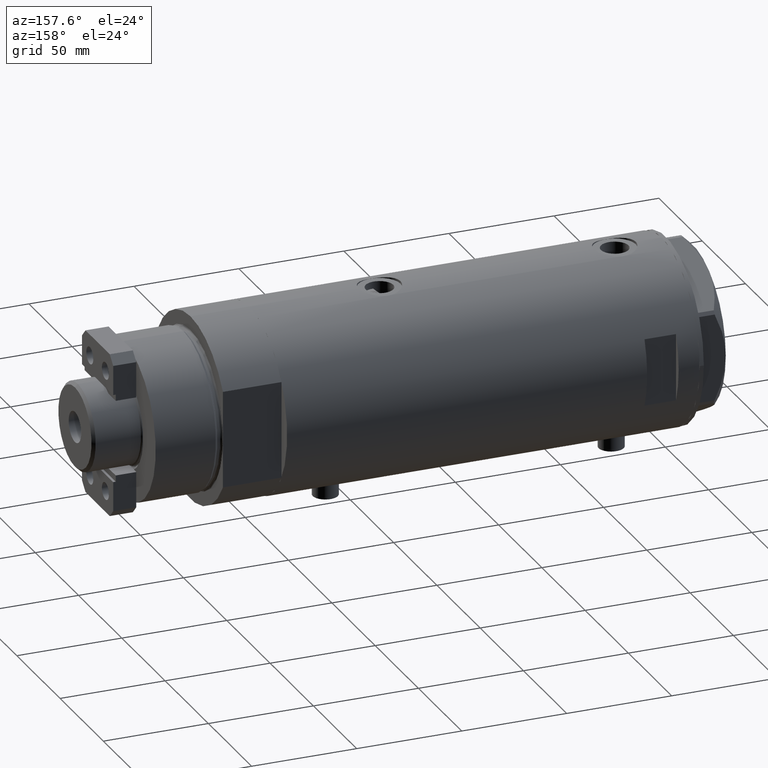
[diagram: clean part render]
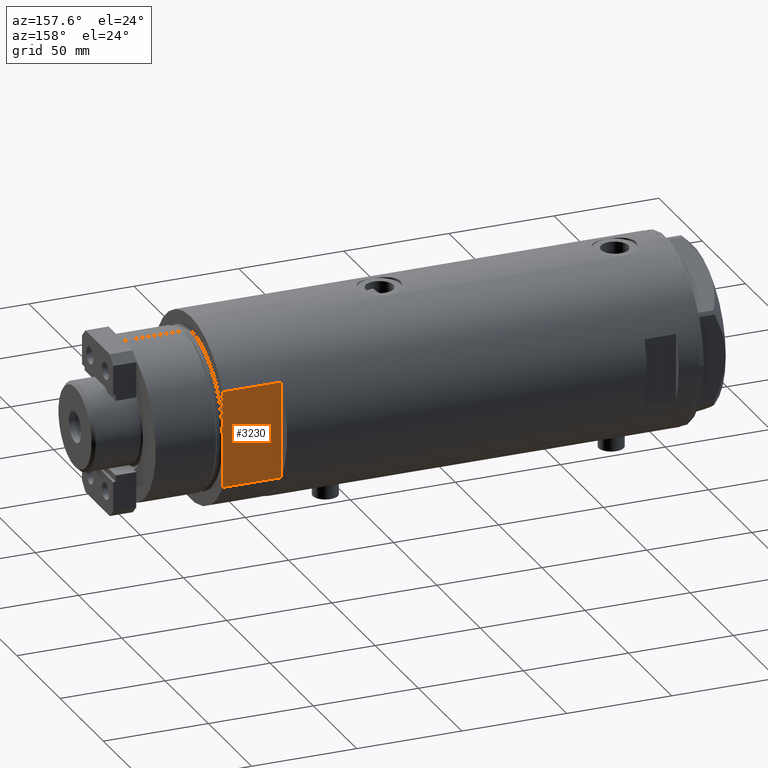
[diagram: same view with one face highlighted and labeled with its STEP entity id]
A machine part, auxiliary view. The second image highlights one B-rep face of the part: STEP entity #3230.
In plain terms, the highlighted planar face has unit normal (0, -1, -0).
Its self-contained STEP definition (entity closure, byte-faithful):
#24 = LINE ( 'NONE', #4926, #4420 ) ;
#68 = VECTOR ( 'NONE', #4451, 1000.000000000000000 ) ;
#87 = CARTESIAN_POINT ( 'NONE',  ( 23.01629857296780557, 37.50000000000000000, 0.000000000000000000 ) ) ;
#98 = ORIENTED_EDGE ( 'NONE', *, *, #5053, .F. ) ;
#146 = PLANE ( 'NONE',  #237 ) ;
#237 = AXIS2_PLACEMENT_3D ( 'NONE', #2435, #3132, #4357 ) ;
#299 = VECTOR ( 'NONE', #2416, 1000.000000000000000 ) ;
#359 = DIRECTION ( 'NONE',  ( 1.000000000000000000, 0.000000000000000000, 0.000000000000000000 ) ) ;
#389 = CARTESIAN_POINT ( 'NONE',  ( -23.01629857296780557, 37.50000000000000000, 0.000000000000000000 ) ) ;
#526 = LINE ( 'NONE', #1330, #3332 ) ;
#747 = VECTOR ( 'NONE', #359, 1000.000000000000000 ) ;
#891 = ORIENTED_EDGE ( 'NONE', *, *, #3802, .T. ) ;
#1173 = LINE ( 'NONE', #4853, #299 ) ;
#1176 = CARTESIAN_POINT ( 'NONE',  ( -13.91941090707505957, 37.50000000000000000, 0.000000000000000000 ) ) ;
#1330 = CARTESIAN_POINT ( 'NONE',  ( -23.01629857296780557, 37.50000000000000000, 27.89999999999999858 ) ) ;
#1340 = VECTOR ( 'NONE', #2844, 1000.000000000000000 ) ;
#1352 = DIRECTION ( 'NONE',  ( 1.000000000000000000, 0.000000000000000000, 0.000000000000000000 ) ) ;
#1385 = VERTEX_POINT ( 'NONE', #1176 ) ;
#1407 = EDGE_CURVE ( 'NONE', #1724, #5062, #4122, .T. ) ;
#1623 = LINE ( 'NONE', #4061, #68 ) ;
#1655 = CARTESIAN_POINT ( 'NONE',  ( 0.000000000000000000, 37.50000000000000000, 27.89999999999999858 ) ) ;
#1720 = EDGE_CURVE ( 'NONE', #1385, #1724, #1173, .T. ) ;
#1724 = VERTEX_POINT ( 'NONE', #4044 ) ;
#1764 = DIRECTION ( 'NONE',  ( 1.000000000000000000, 0.000000000000000000, 0.000000000000000000 ) ) ;
#1879 = ORIENTED_EDGE ( 'NONE', *, *, #3856, .F. ) ;
#1993 = VERTEX_POINT ( 'NONE', #2483 ) ;
#2031 = EDGE_CURVE ( 'NONE', #1993, #4269, #2441, .T. ) ;
#2066 = CARTESIAN_POINT ( 'NONE',  ( -23.01629857296780557, 37.50000000000000000, 27.89999999999999858 ) ) ;
#2232 = VERTEX_POINT ( 'NONE', #1655 ) ;
#2250 = ORIENTED_EDGE ( 'NONE', *, *, #2031, .T. ) ;
#2255 = ORIENTED_EDGE ( 'NONE', *, *, #1720, .F. ) ;
#2416 = DIRECTION ( 'NONE',  ( 1.000000000000000000, 0.000000000000000000, 0.000000000000000000 ) ) ;
#2435 = CARTESIAN_POINT ( 'NONE',  ( -23.01629857296780557, 37.50000000000000000, 0.000000000000000000 ) ) ;
#2441 = LINE ( 'NONE', #389, #5018 ) ;
#2470 = FACE_OUTER_BOUND ( 'NONE', #3531, .T. ) ;
#2483 = CARTESIAN_POINT ( 'NONE',  ( -23.01629857296780557, 37.50000000000000000, 0.000000000000000000 ) ) ;
#2501 = ORIENTED_EDGE ( 'NONE', *, *, #1407, .F. ) ;
#2567 = VERTEX_POINT ( 'NONE', #2669 ) ;
#2669 = CARTESIAN_POINT ( 'NONE',  ( 23.01629857296780557, 37.50000000000000000, 27.89999999999999858 ) ) ;
#2771 = ORIENTED_EDGE ( 'NONE', *, *, #3971, .T. ) ;
#2844 = DIRECTION ( 'NONE',  ( 1.000000000000000000, 0.000000000000000000, 0.000000000000000000 ) ) ;
#3132 = DIRECTION ( 'NONE',  ( 0.000000000000000000, -1.000000000000000000, 0.000000000000000000 ) ) ;
#3141 = LINE ( 'NONE', #4740, #747 ) ;
#3230 = ADVANCED_FACE ( 'NONE', ( #2470 ), #146, .F. ) ;
#3255 = CARTESIAN_POINT ( 'NONE',  ( -23.01629857296780557, 37.50000000000000000, 0.000000000000000000 ) ) ;
#3332 = VECTOR ( 'NONE', #1764, 1000.000000000000000 ) ;
#3531 = EDGE_LOOP ( 'NONE', ( #891, #2771, #1879, #2501, #2255, #98, #2250 ) ) ;
#3802 = EDGE_CURVE ( 'NONE', #4269, #2232, #3141, .T. ) ;
#3856 = EDGE_CURVE ( 'NONE', #5062, #2567, #1623, .T. ) ;
#3971 = EDGE_CURVE ( 'NONE', #2232, #2567, #526, .T. ) ;
#4044 = CARTESIAN_POINT ( 'NONE',  ( 13.91941090707505957, 37.50000000000000000, 0.000000000000000000 ) ) ;
#4061 = CARTESIAN_POINT ( 'NONE',  ( 23.01629857296780557, 37.50000000000000000, 0.000000000000000000 ) ) ;
#4122 = LINE ( 'NONE', #3255, #1340 ) ;
#4269 = VERTEX_POINT ( 'NONE', #2066 ) ;
#4357 = DIRECTION ( 'NONE',  ( 0.000000000000000000, -0.000000000000000000, -1.000000000000000000 ) ) ;
#4420 = VECTOR ( 'NONE', #1352, 1000.000000000000000 ) ;
#4451 = DIRECTION ( 'NONE',  ( -0.000000000000000000, -0.000000000000000000, 1.000000000000000000 ) ) ;
#4740 = CARTESIAN_POINT ( 'NONE',  ( -23.01629857296780557, 37.50000000000000000, 27.89999999999999858 ) ) ;
#4853 = CARTESIAN_POINT ( 'NONE',  ( -23.01629857296780557, 37.50000000000000000, 0.000000000000000000 ) ) ;
#4926 = CARTESIAN_POINT ( 'NONE',  ( -23.01629857296780557, 37.50000000000000000, 0.000000000000000000 ) ) ;
#5018 = VECTOR ( 'NONE', #5280, 1000.000000000000000 ) ;
#5053 = EDGE_CURVE ( 'NONE', #1993, #1385, #24, .T. ) ;
#5062 = VERTEX_POINT ( 'NONE', #87 ) ;
#5280 = DIRECTION ( 'NONE',  ( -0.000000000000000000, -0.000000000000000000, 1.000000000000000000 ) ) ;